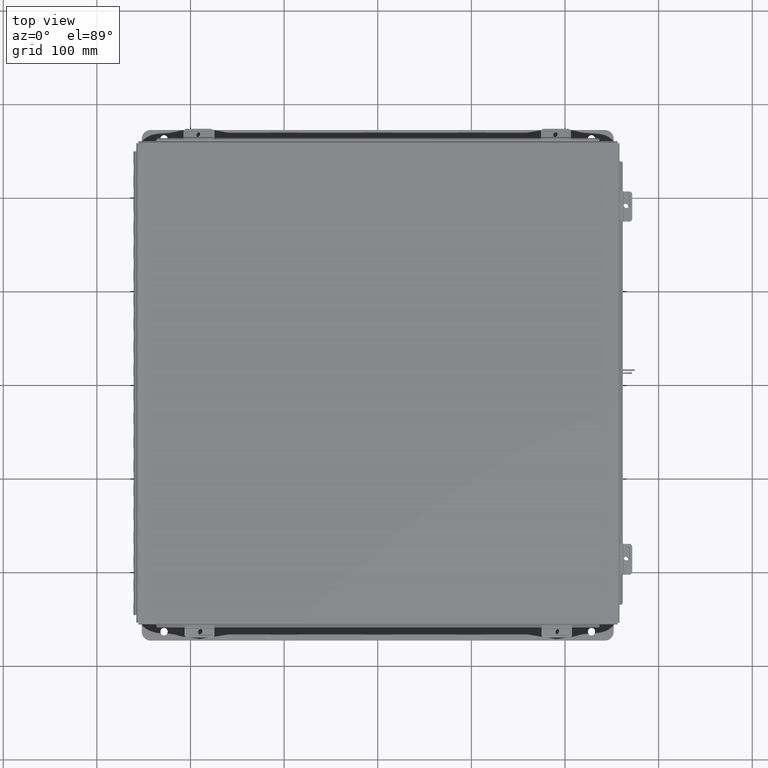
[diagram: clean part render]
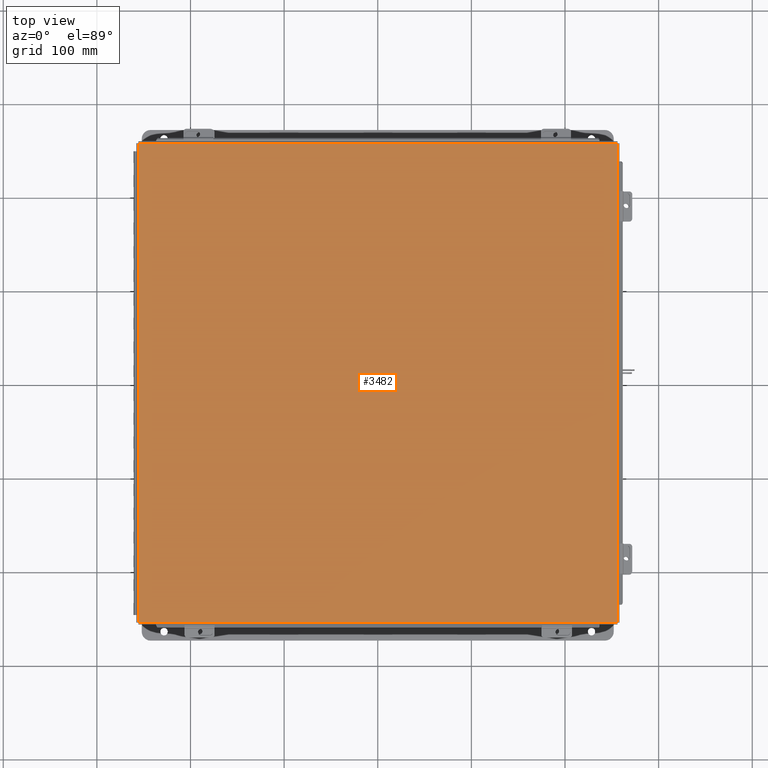
[diagram: same view with one face highlighted and labeled with its STEP entity id]
A machine part, top view. The second image highlights one B-rep face of the part: STEP entity #3482.
In plain terms, the highlighted planar face has unit normal (-0, -0, 1).
Its self-contained STEP definition (entity closure, byte-faithful):
#336 = VECTOR ( 'NONE', #20947, 39.37007874015748100 ) ;
#2098 = CARTESIAN_POINT ( 'NONE',  ( -10.06855000000003200, -10.06855000000001400, -0.07470000000000015500 ) ) ;
#2659 = EDGE_CURVE ( 'NONE', #14773, #20389, #21927, .T. ) ;
#2818 = VERTEX_POINT ( 'NONE', #3591 ) ;
#2876 = CARTESIAN_POINT ( 'NONE',  ( 10.06855000000003600, -10.06855000000001400, -0.07469999999999797600 ) ) ;
#3255 = CARTESIAN_POINT ( 'NONE',  ( -10.06855000000003200, -10.07447893218814800, -0.07470000000000015500 ) ) ;
#3482 = ADVANCED_FACE ( 'NONE', ( #11533 ), #22308, .T. ) ;
#3591 = CARTESIAN_POINT ( 'NONE',  ( -10.06855000000003200, 10.06854999999998400, -0.07469999999999907300 ) ) ;
#3728 = VECTOR ( 'NONE', #13638, 39.37007874015748100 ) ;
#4267 = CARTESIAN_POINT ( 'NONE',  ( 10.06855000000003600, 10.06854999999998100, -0.07470000000000015500 ) ) ;
#4438 = EDGE_CURVE ( 'NONE', #10904, #2818, #4940, .T. ) ;
#4714 = LINE ( 'NONE', #10619, #336 ) ;
#4940 = LINE ( 'NONE', #3255, #18354 ) ;
#6603 = CARTESIAN_POINT ( 'NONE',  ( 10.07447893218816600, -10.06855000000001400, -0.07469999999999033000 ) ) ;
#6969 = ORIENTED_EDGE ( 'NONE', *, *, #15049, .T. ) ;
#7585 = CARTESIAN_POINT ( 'NONE',  ( 10.06855000000003600, 10.07447893218811600, -0.07470000000000015500 ) ) ;
#7821 = ORIENTED_EDGE ( 'NONE', *, *, #7974, .T. ) ;
#7974 = EDGE_CURVE ( 'NONE', #2818, #14773, #4714, .T. ) ;
#9251 = LINE ( 'NONE', #6603, #3728 ) ;
#10494 = AXIS2_PLACEMENT_3D ( 'NONE', #19325, #20006, #16021 ) ;
#10619 = CARTESIAN_POINT ( 'NONE',  ( -10.07447893218816600, 10.06854999999998400, -0.07469999999999907300 ) ) ;
#10904 = VERTEX_POINT ( 'NONE', #2098 ) ;
#11533 = FACE_OUTER_BOUND ( 'NONE', #18688, .T. ) ;
#13567 = ORIENTED_EDGE ( 'NONE', *, *, #2659, .T. ) ;
#13638 = DIRECTION ( 'NONE',  ( -1.000000000000000000, -3.205297876175390800E-030, -8.208677865577550200E-017 ) ) ;
#13954 = DIRECTION ( 'NONE',  ( -3.166671605124525800E-030, -1.000000000000000000, -1.853823127269377700E-029 ) ) ;
#14773 = VERTEX_POINT ( 'NONE', #4267 ) ;
#15049 = EDGE_CURVE ( 'NONE', #20389, #10904, #9251, .T. ) ;
#16021 = DIRECTION ( 'NONE',  ( -1.000000000000000000, -3.215975411700707400E-030, 0.0000000000000000000 ) ) ;
#17194 = VECTOR ( 'NONE', #13954, 39.37007874015748100 ) ;
#18354 = VECTOR ( 'NONE', #18757, 39.37007874015748100 ) ;
#18688 = EDGE_LOOP ( 'NONE', ( #7821, #13567, #6969, #20226 ) ) ;
#18757 = DIRECTION ( 'NONE',  ( 3.166671605124525800E-030, 1.000000000000000000, 1.853823127269377700E-029 ) ) ;
#19325 = CARTESIAN_POINT ( 'NONE',  ( 0.0000000000000000000, 0.0000000000000000000, -0.07470000000000015500 ) ) ;
#20006 = DIRECTION ( 'NONE',  ( 5.938065620492508100E-059, -1.846427556282924300E-029, -1.000000000000000000 ) ) ;
#20226 = ORIENTED_EDGE ( 'NONE', *, *, #4438, .T. ) ;
#20389 = VERTEX_POINT ( 'NONE', #2876 ) ;
#20947 = DIRECTION ( 'NONE',  ( 1.000000000000000000, 3.215975411700707400E-030, -0.0000000000000000000 ) ) ;
#21927 = LINE ( 'NONE', #7585, #17194 ) ;
#22308 = PLANE ( 'NONE',  #10494 ) ;